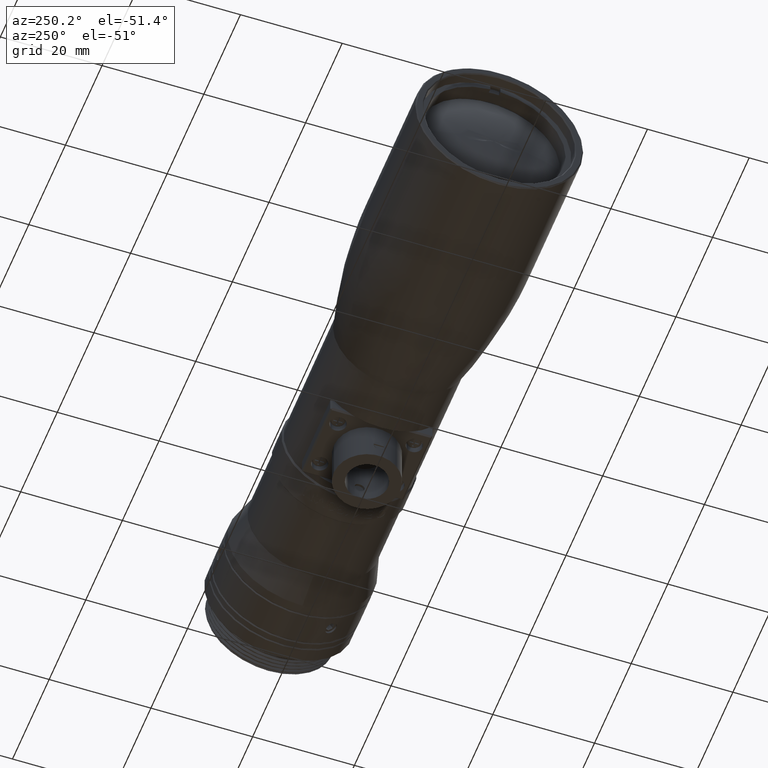
[diagram: clean part render]
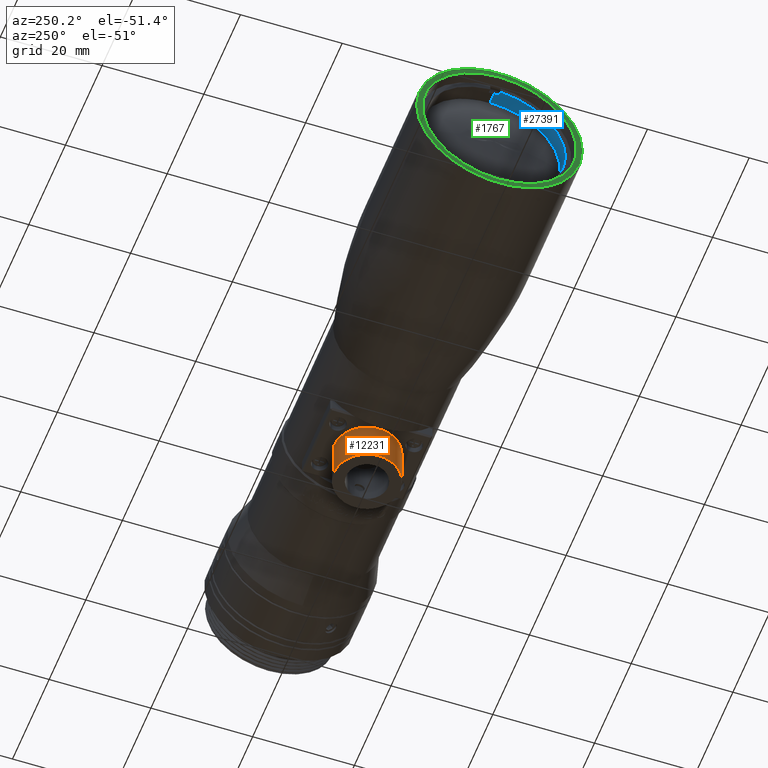
[diagram: same view with three faces highlighted in distinct colors, each labeled with its STEP entity id]
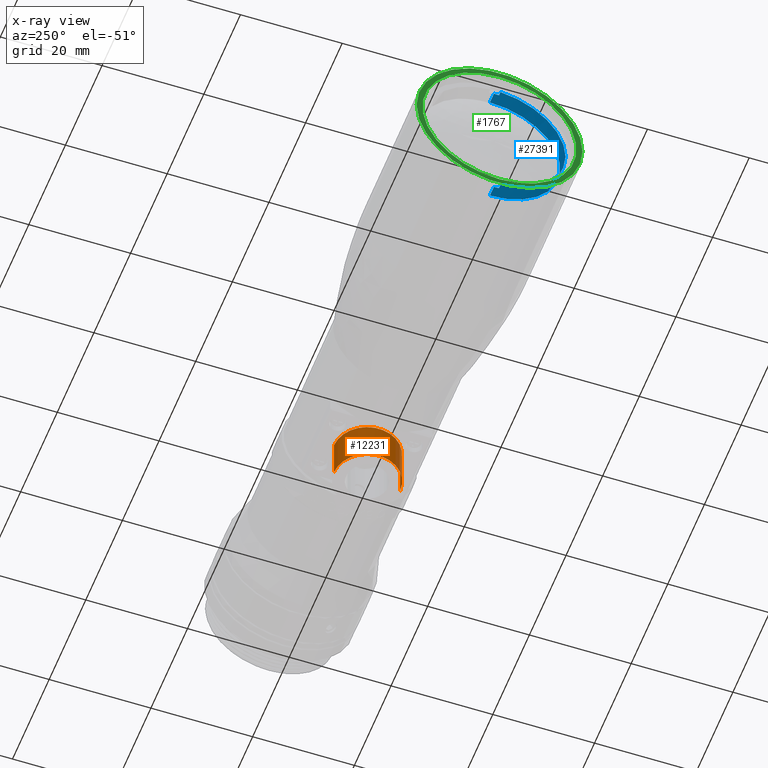
[diagram: x-ray of the same camera — body ghosted, the three highlighted faces saturated]
A machine part, auxiliary view with three faces highlighted in distinct colors.
The next image is the same camera in x-ray (body ghosted, the three faces saturated) — at least one of them is partly hidden behind the body in this view.
Their STEP definitions:

[orange] entity #12231 — the highlighted cylindrical surface (edge-blend (fillet) strip) has radius 6.5 mm, axis along (0, -0, -1).
#669 = CIRCLE ( 'NONE', #21036, 6.500000000000000000 ) ;
#706 = DIRECTION ( 'NONE',  ( 0.000000000000000000, 1.000000000000000000, -2.668805347656626185E-16 ) ) ;
#868 = CARTESIAN_POINT ( 'NONE',  ( 11.05000000000000071, 1.224646799147351975E-16, -15.50000000000000000 ) ) ;
#873 = FACE_BOUND ( 'NONE', #28951, .T. ) ;
#1161 = DIRECTION ( 'NONE',  ( 0.000000000000000000, -1.334402673828311860E-16, -1.000000000000000000 ) ) ;
#1251 = AXIS2_PLACEMENT_3D ( 'NONE', #30271, #12619, #19820 ) ;
#1289 = CARTESIAN_POINT ( 'NONE',  ( 11.05000000000000071, 0.000000000000000000, -17.50000000000000000 ) ) ;
#1853 = CARTESIAN_POINT ( 'NONE',  ( 11.09866780377592654, -0.7993551541545715899, -15.88505845786180082 ) ) ;
#1891 = ORIENTED_EDGE ( 'NONE', *, *, #2799, .F. ) ;
#2361 = AXIS2_PLACEMENT_3D ( 'NONE', #17699, #20473, #706 ) ;
#2799 = EDGE_CURVE ( 'NONE', #3019, #28990, #14213, .T. ) ;
#2960 = CARTESIAN_POINT ( 'NONE',  ( 17.55000000000000071, -6.500000000000000000, -19.50000000000000000 ) ) ;
#3004 = FACE_OUTER_BOUND ( 'NONE', #12775, .T. ) ;
#3019 = VERTEX_POINT ( 'NONE', #28397 ) ;
#3373 = EDGE_CURVE ( 'NONE', #31111, #28990, #669, .T. ) ;
#3907 = CARTESIAN_POINT ( 'NONE',  ( 11.10838409777112368, 0.8708087376432909199, -17.00793262438586240 ) ) ;
#4646 = EDGE_CURVE ( 'NONE', #25045, #31111, #29301, .T. ) ;
#4790 = CARTESIAN_POINT ( 'NONE',  ( 11.05000000000000071, 0.000000000000000000, -17.50000000000000000 ) ) ;
#4956 = CARTESIAN_POINT ( 'NONE',  ( 11.05000000000000426, -0.1326326919322166897, -15.50000000000000888 ) ) ;
#6517 = CARTESIAN_POINT ( 'NONE',  ( 11.12737144412097123, 0.9999212166788603584, -16.63238399089368613 ) ) ;
#6999 = CARTESIAN_POINT ( 'NONE',  ( 11.07843410189048150, 0.6144027282681157054, -17.29973209472071716 ) ) ;
#9225 = CARTESIAN_POINT ( 'NONE',  ( 17.55000000000000071, 6.500000000000000000, -11.50000000000000000 ) ) ;
#9288 = CARTESIAN_POINT ( 'NONE',  ( 11.06868777811942373, 0.5079858334530766850, -15.62917009673750535 ) ) ;
#9460 = VECTOR ( 'NONE', #23326, 1000.000000000000000 ) ;
#9971 = CARTESIAN_POINT ( 'NONE',  ( 11.09870907900310577, -0.7996687849595021103, -17.11445944101942374 ) ) ;
#10023 = CARTESIAN_POINT ( 'NONE',  ( 11.05408021772133864, -0.2608020807382656625, -15.52559845760708335 ) ) ;
#10696 = DIRECTION ( 'NONE',  ( 0.000000000000000000, 1.000000000000000000, 0.000000000000000000 ) ) ;
#11251 = CARTESIAN_POINT ( 'NONE',  ( 11.12319609964876399, 0.9741226390111151767, -16.75974522325493865 ) ) ;
#11408 = CARTESIAN_POINT ( 'NONE',  ( 11.09870684785643924, 0.7996506981966021721, -15.88551791711396000 ) ) ;
#11812 = CARTESIAN_POINT ( 'NONE',  ( 11.10838180474754644, -0.8707919422096519479, -15.99203951557584524 ) ) ;
#12231 = ADVANCED_FACE ( 'NONE', ( #873, #3004 ), #12801, .T. ) ;
#12619 = DIRECTION ( 'NONE',  ( 0.000000000000000000, 2.668805347656624706E-16, 1.000000000000000000 ) ) ;
#12775 = EDGE_LOOP ( 'NONE', ( #1891, #26715, #22571, #13136 ) ) ;
#12801 = CYLINDRICAL_SURFACE ( 'NONE', #2361, 6.500000000000000000 ) ;
#12892 = CARTESIAN_POINT ( 'NONE',  ( 11.07849639755453097, -0.6150331995192030998, -17.29926553050512794 ) ) ;
#13136 = ORIENTED_EDGE ( 'NONE', *, *, #3373, .T. ) ;
#13459 = CARTESIAN_POINT ( 'NONE',  ( 17.55000000000000071, -1.067522139062650080E-15, -19.50000000000000000 ) ) ;
#14010 = CARTESIAN_POINT ( 'NONE',  ( 17.55000000000000071, 6.500000000000000000, -11.50000000000000000 ) ) ;
#14051 = CARTESIAN_POINT ( 'NONE',  ( 17.55000000000000071, 6.500000000000000000, -19.50000000000000000 ) ) ;
#14177 = CARTESIAN_POINT ( 'NONE',  ( 11.05000000000000071, 1.224646799147351975E-16, -15.50000000000000000 ) ) ;
#14213 = LINE ( 'NONE', #31720, #25136 ) ;
#14349 = CARTESIAN_POINT ( 'NONE',  ( 11.12739597718836748, 1.000078783157178242, -16.36759039341618660 ) ) ;
#14670 = ORIENTED_EDGE ( 'NONE', *, *, #21455, .T. ) ;
#15332 = CIRCLE ( 'NONE', #1251, 6.500000000000000000 ) ;
#15341 = CARTESIAN_POINT ( 'NONE',  ( 11.05000000000000071, 0.000000000000000000, -17.50000000000000000 ) ) ;
#15505 = CARTESIAN_POINT ( 'NONE',  ( 11.05400290092442361, -0.2597695903759118519, -17.47416440277192251 ) ) ;
#16779 = CARTESIAN_POINT ( 'NONE',  ( 11.09867002276459580, 0.7993731362143320363, -17.11491903011776827 ) ) ;
#17105 = EDGE_CURVE ( 'NONE', #27974, #24497, #21933, .T. ) ;
#17349 = CARTESIAN_POINT ( 'NONE',  ( 11.05000000000000071, 1.224646799147351975E-16, -15.50000000000000000 ) ) ;
#17535 = EDGE_CURVE ( 'NONE', #25045, #3019, #15332, .T. ) ;
#17699 = CARTESIAN_POINT ( 'NONE',  ( 17.55000000000000071, 0.000000000000000000, -11.50000000000000000 ) ) ;
#17962 = CARTESIAN_POINT ( 'NONE',  ( 11.10870901338297756, -0.8731457348113568218, -17.00508371189478396 ) ) ;
#19334 = CARTESIAN_POINT ( 'NONE',  ( 11.12739700708326929, -1.000085397776964369, -16.63236412092456362 ) ) ;
#19820 = DIRECTION ( 'NONE',  ( 0.000000000000000000, 1.000000000000000000, -2.668805347656626185E-16 ) ) ;
#19981 = CARTESIAN_POINT ( 'NONE',  ( 11.06851039843444084, -0.5052564575680560388, -15.62692912963865943 ) ) ;
#20473 = DIRECTION ( 'NONE',  ( 0.000000000000000000, -2.668805347656624706E-16, -1.000000000000000000 ) ) ;
#21036 = AXIS2_PLACEMENT_3D ( 'NONE', #13459, #23428, #10696 ) ;
#21455 = EDGE_CURVE ( 'NONE', #24497, #27974, #25779, .T. ) ;
#21531 = CARTESIAN_POINT ( 'NONE',  ( 11.07849482558826004, 0.6150165457797406310, -15.70072234770461961 ) ) ;
#21774 = CARTESIAN_POINT ( 'NONE',  ( 11.12319437176983072, -0.9741113883810962326, -16.24021443291823275 ) ) ;
#21933 = B_SPLINE_CURVE_WITH_KNOTS ( 'NONE', 3,
 ( #1289, #26578, #31683, #29363, #6999, #16779, #3907, #11251, #6517, #14349, #26731, #28719, #11408, #21531, #9288, #24140, #24304, #14177 ),
 .UNSPECIFIED., .F., .F.,
 ( 4, 2, 2, 2, 2, 2, 2, 2, 4 ),
 ( 0.000000000000000000, 0.1250000000000000833, 0.2500000000000001665, 0.3750000000000002220, 0.5000000000000003331, 0.6250000000000004441, 0.7500000000000004441, 0.8750000000000005551, 1.000000000000000000 ),
 .UNSPECIFIED. ) ;
#21973 = ORIENTED_EDGE ( 'NONE', *, *, #17105, .T. ) ;
#22571 = ORIENTED_EDGE ( 'NONE', *, *, #4646, .T. ) ;
#22855 = CARTESIAN_POINT ( 'NONE',  ( 11.06868885493605248, -0.5080003859765025442, -17.37082201385960900 ) ) ;
#23014 = CARTESIAN_POINT ( 'NONE',  ( 11.12323823739948914, -0.9743440333213657656, -16.76093296980677749 ) ) ;
#23181 = CARTESIAN_POINT ( 'NONE',  ( 11.05000000000000249, -0.1317399134059683008, -17.50000000000000711 ) ) ;
#23326 = DIRECTION ( 'NONE',  ( 0.000000000000000000, -1.334402673828311860E-16, -1.000000000000000000 ) ) ;
#23428 = DIRECTION ( 'NONE',  ( 0.000000000000000000, 0.000000000000000000, 1.000000000000000000 ) ) ;
#24140 = CARTESIAN_POINT ( 'NONE',  ( 11.05400264706913838, 0.2597616507547116371, -15.52583401934749396 ) ) ;
#24304 = CARTESIAN_POINT ( 'NONE',  ( 11.04999999999999716, 0.1317357278962817124, -15.49999999999999467 ) ) ;
#24497 = VERTEX_POINT ( 'NONE', #868 ) ;
#25045 = VERTEX_POINT ( 'NONE', #14010 ) ;
#25136 = VECTOR ( 'NONE', #1161, 1000.000000000000000 ) ;
#25779 = B_SPLINE_CURVE_WITH_KNOTS ( 'NONE', 3,
 ( #17349, #4956, #10023, #19981, #29951, #1853, #11812, #21774, #31759, #19334, #23014, #17962, #9971, #12892, #22855, #15505, #23181, #15341 ),
 .UNSPECIFIED., .F., .F.,
 ( 4, 2, 2, 2, 2, 2, 2, 2, 4 ),
 ( 0.000000000000000000, 0.1250000000000005551, 0.2500000000000004996, 0.3750000000000004441, 0.5000000000000003331, 0.6250000000000003331, 0.7500000000000002220, 0.8750000000000001110, 1.000000000000000000 ),
 .UNSPECIFIED. ) ;
#26578 = CARTESIAN_POINT ( 'NONE',  ( 11.05000000000000249, 0.1326369717828552175, -17.49999999999999645 ) ) ;
#26715 = ORIENTED_EDGE ( 'NONE', *, *, #17535, .F. ) ;
#26731 = CARTESIAN_POINT ( 'NONE',  ( 11.12323649729298758, 0.9743327073492662471, -16.23902690962437134 ) ) ;
#27974 = VERTEX_POINT ( 'NONE', #4790 ) ;
#28397 = CARTESIAN_POINT ( 'NONE',  ( 17.55000000000000071, -6.500000000000000000, -11.50000000000000000 ) ) ;
#28719 = CARTESIAN_POINT ( 'NONE',  ( 11.10870667427186831, 0.8731286481771534103, -15.99488788634361214 ) ) ;
#28951 = EDGE_LOOP ( 'NONE', ( #21973, #14670 ) ) ;
#28990 = VERTEX_POINT ( 'NONE', #2960 ) ;
#29301 = LINE ( 'NONE', #9225, #9460 ) ;
#29363 = CARTESIAN_POINT ( 'NONE',  ( 11.06851148280349939, 0.5052711700581135057, -17.37306299899684348 ) ) ;
#29951 = CARTESIAN_POINT ( 'NONE',  ( 11.07843251789128836, -0.6143859479381980071, -15.70025567727158844 ) ) ;
#30271 = CARTESIAN_POINT ( 'NONE',  ( 17.55000000000000071, 0.000000000000000000, -11.50000000000000000 ) ) ;
#31111 = VERTEX_POINT ( 'NONE', #14051 ) ;
#31683 = CARTESIAN_POINT ( 'NONE',  ( 11.05408048165451440, 0.2608102088111958206, -17.47439994270175134 ) ) ;
#31720 = CARTESIAN_POINT ( 'NONE',  ( 17.55000000000000071, -6.500000000000000000, -11.50000000000000000 ) ) ;
#31759 = CARTESIAN_POINT ( 'NONE',  ( 11.12737041403697980, -0.9999146008445655154, -16.36756162801971470 ) ) ;

[blue] entity #27391 — the highlighted cylindrical surface (partial cylindrical patch) has radius 13.8 mm, axis along (1, 0, 0).
#209 = AXIS2_PLACEMENT_3D ( 'NONE', #30876, #23504, #23351 ) ;
#481 = CYLINDRICAL_SURFACE ( 'NONE', #13993, 13.79999999999999893 ) ;
#1595 = CARTESIAN_POINT ( 'NONE',  ( -51.74000000000000199, 0.000000000000000000, -13.79999999999999893 ) ) ;
#1791 = CIRCLE ( 'NONE', #10151, 13.79999999999999893 ) ;
#2165 = CARTESIAN_POINT ( 'NONE',  ( -51.74000000000000199, 1.690012582823350093E-15, 13.79999999999999893 ) ) ;
#2823 = DIRECTION ( 'NONE',  ( -1.000000000000000000, 0.000000000000000000, 0.000000000000000000 ) ) ;
#3134 = LINE ( 'NONE', #5733, #21381 ) ;
#3375 = VECTOR ( 'NONE', #32101, 1000.000000000000000 ) ;
#3443 = FACE_OUTER_BOUND ( 'NONE', #21419, .T. ) ;
#3517 = CARTESIAN_POINT ( 'NONE',  ( -51.03999999999999915, -0.9999999999998698819, 13.76372042726822009 ) ) ;
#3920 = VECTOR ( 'NONE', #30646, 1000.000000000000000 ) ;
#5685 = VERTEX_POINT ( 'NONE', #1595 ) ;
#5733 = CARTESIAN_POINT ( 'NONE',  ( -51.03999999999999915, -0.9999999999998698819, -13.76372042726822009 ) ) ;
#6265 = LINE ( 'NONE', #31604, #11205 ) ;
#6597 = DIRECTION ( 'NONE',  ( 1.000000000000000000, 0.000000000000000000, 0.000000000000000000 ) ) ;
#6757 = ORIENTED_EDGE ( 'NONE', *, *, #31023, .F. ) ;
#6918 = CARTESIAN_POINT ( 'NONE',  ( -51.74000000000000199, -0.9999999999999349409, 13.76372042726820055 ) ) ;
#7715 = DIRECTION ( 'NONE',  ( 0.000000000000000000, 0.000000000000000000, -1.000000000000000000 ) ) ;
#7775 = DIRECTION ( 'NONE',  ( 0.000000000000000000, 0.000000000000000000, -1.000000000000000000 ) ) ;
#8196 = LINE ( 'NONE', #25163, #3375 ) ;
#9181 = ORIENTED_EDGE ( 'NONE', *, *, #21830, .T. ) ;
#9649 = ORIENTED_EDGE ( 'NONE', *, *, #13756, .F. ) ;
#10151 = AXIS2_PLACEMENT_3D ( 'NONE', #28122, #2823, #25511 ) ;
#10447 = DIRECTION ( 'NONE',  ( 1.000000000000000000, 0.000000000000000000, 0.000000000000000000 ) ) ;
#11043 = CARTESIAN_POINT ( 'NONE',  ( -52.54000000000000625, -0.9999999999999349409, -13.76372042726820055 ) ) ;
#11079 = CARTESIAN_POINT ( 'NONE',  ( -52.54000000000000625, 0.000000000000000000, 0.000000000000000000 ) ) ;
#11205 = VECTOR ( 'NONE', #6597, 1000.000000000000000 ) ;
#11379 = VERTEX_POINT ( 'NONE', #18503 ) ;
#13035 = CIRCLE ( 'NONE', #28161, 13.79999999999999893 ) ;
#13156 = VERTEX_POINT ( 'NONE', #27125 ) ;
#13565 = DIRECTION ( 'NONE',  ( 1.000000000000000000, 0.000000000000000000, 0.000000000000000000 ) ) ;
#13756 = EDGE_CURVE ( 'NONE', #5685, #16044, #8196, .T. ) ;
#13993 = AXIS2_PLACEMENT_3D ( 'NONE', #11079, #10447, #20417 ) ;
#14277 = CIRCLE ( 'NONE', #209, 13.79999999999999893 ) ;
#14412 = CARTESIAN_POINT ( 'NONE',  ( -49.53999999999999915, 0.000000000000000000, -13.79999999999999893 ) ) ;
#16044 = VERTEX_POINT ( 'NONE', #14412 ) ;
#16507 = ORIENTED_EDGE ( 'NONE', *, *, #16930, .F. ) ;
#16930 = EDGE_CURVE ( 'NONE', #22039, #19407, #14277, .T. ) ;
#17334 = VERTEX_POINT ( 'NONE', #11043 ) ;
#17890 = CARTESIAN_POINT ( 'NONE',  ( -51.74000000000000199, 0.000000000000000000, 0.000000000000000000 ) ) ;
#18405 = EDGE_CURVE ( 'NONE', #16044, #13156, #1791, .T. ) ;
#18503 = CARTESIAN_POINT ( 'NONE',  ( -51.74000000000000199, -0.9999999999999349409, -13.76372042726820055 ) ) ;
#18536 = CARTESIAN_POINT ( 'NONE',  ( -52.54000000000000625, -0.9999999999999349409, 13.76372042726820055 ) ) ;
#19407 = VERTEX_POINT ( 'NONE', #6918 ) ;
#20417 = DIRECTION ( 'NONE',  ( 0.000000000000000000, 0.000000000000000000, -1.000000000000000000 ) ) ;
#20494 = LINE ( 'NONE', #3517, #3920 ) ;
#21381 = VECTOR ( 'NONE', #13565, 1000.000000000000000 ) ;
#21419 = EDGE_LOOP ( 'NONE', ( #16507, #9181, #27111, #9649, #25660, #6757, #21951, #29963 ) ) ;
#21755 = EDGE_CURVE ( 'NONE', #19407, #27779, #20494, .T. ) ;
#21830 = EDGE_CURVE ( 'NONE', #22039, #13156, #6265, .T. ) ;
#21951 = ORIENTED_EDGE ( 'NONE', *, *, #30853, .F. ) ;
#22039 = VERTEX_POINT ( 'NONE', #2165 ) ;
#23351 = DIRECTION ( 'NONE',  ( 0.000000000000000000, 0.000000000000000000, -1.000000000000000000 ) ) ;
#23504 = DIRECTION ( 'NONE',  ( 1.000000000000000000, 0.000000000000000000, 0.000000000000000000 ) ) ;
#25163 = CARTESIAN_POINT ( 'NONE',  ( -52.54000000000000625, 0.000000000000000000, -13.79999999999999893 ) ) ;
#25167 = CARTESIAN_POINT ( 'NONE',  ( -52.54000000000000625, 0.000000000000000000, 0.000000000000000000 ) ) ;
#25480 = CIRCLE ( 'NONE', #28094, 13.79999999999999893 ) ;
#25511 = DIRECTION ( 'NONE',  ( 0.000000000000000000, 0.000000000000000000, -1.000000000000000000 ) ) ;
#25660 = ORIENTED_EDGE ( 'NONE', *, *, #28616, .F. ) ;
#27111 = ORIENTED_EDGE ( 'NONE', *, *, #18405, .F. ) ;
#27125 = CARTESIAN_POINT ( 'NONE',  ( -49.53999999999999915, 1.690012582823350093E-15, 13.79999999999999893 ) ) ;
#27391 = ADVANCED_FACE ( 'NONE', ( #3443 ), #481, .F. ) ;
#27779 = VERTEX_POINT ( 'NONE', #18536 ) ;
#28094 = AXIS2_PLACEMENT_3D ( 'NONE', #17890, #30315, #7775 ) ;
#28122 = CARTESIAN_POINT ( 'NONE',  ( -49.53999999999999915, 0.000000000000000000, 0.000000000000000000 ) ) ;
#28161 = AXIS2_PLACEMENT_3D ( 'NONE', #25167, #30099, #7715 ) ;
#28616 = EDGE_CURVE ( 'NONE', #11379, #5685, #25480, .T. ) ;
#29963 = ORIENTED_EDGE ( 'NONE', *, *, #21755, .F. ) ;
#30099 = DIRECTION ( 'NONE',  ( 1.000000000000000000, 0.000000000000000000, 0.000000000000000000 ) ) ;
#30315 = DIRECTION ( 'NONE',  ( 1.000000000000000000, 0.000000000000000000, 0.000000000000000000 ) ) ;
#30646 = DIRECTION ( 'NONE',  ( -1.000000000000000000, 0.000000000000000000, 0.000000000000000000 ) ) ;
#30853 = EDGE_CURVE ( 'NONE', #27779, #17334, #13035, .T. ) ;
#30876 = CARTESIAN_POINT ( 'NONE',  ( -51.74000000000000199, 0.000000000000000000, 0.000000000000000000 ) ) ;
#31023 = EDGE_CURVE ( 'NONE', #17334, #11379, #3134, .T. ) ;
#31604 = CARTESIAN_POINT ( 'NONE',  ( -52.54000000000000625, 1.690012582823350093E-15, 13.79999999999999893 ) ) ;
#32101 = DIRECTION ( 'NONE',  ( 1.000000000000000000, 0.000000000000000000, 0.000000000000000000 ) ) ;

[green] entity #1767 — the highlighted planar face has unit normal (1, 0, 0).
#718 = CIRCLE ( 'NONE', #9579, 16.29999999999999716 ) ;
#1340 = CARTESIAN_POINT ( 'NONE',  ( -54.80000000000000426, 16.29999999999999716, 0.000000000000000000 ) ) ;
#1767 = ADVANCED_FACE ( 'NONE', ( #20183, #7765 ), #4992, .F. ) ;
#2146 = EDGE_CURVE ( 'NONE', #5652, #23220, #28590, .T. ) ;
#2687 = CARTESIAN_POINT ( 'NONE',  ( -54.80000000000000426, 0.000000000000000000, 0.000000000000000000 ) ) ;
#3805 = EDGE_CURVE ( 'NONE', #28385, #29097, #17391, .T. ) ;
#4992 = PLANE ( 'NONE',  #11917 ) ;
#5652 = VERTEX_POINT ( 'NONE', #14005 ) ;
#7765 = FACE_BOUND ( 'NONE', #17065, .T. ) ;
#8551 = CIRCLE ( 'NONE', #26280, 15.15000000000000036 ) ;
#9579 = AXIS2_PLACEMENT_3D ( 'NONE', #25745, #23144, #30838 ) ;
#11917 = AXIS2_PLACEMENT_3D ( 'NONE', #25220, #12170, #14781 ) ;
#12170 = DIRECTION ( 'NONE',  ( 1.000000000000000000, 0.000000000000000000, 0.000000000000000000 ) ) ;
#12307 = ORIENTED_EDGE ( 'NONE', *, *, #17295, .F. ) ;
#14005 = CARTESIAN_POINT ( 'NONE',  ( -54.80000000000000426, -16.29999999999999716, 2.008420750601660137E-15 ) ) ;
#14361 = CARTESIAN_POINT ( 'NONE',  ( -54.80000000000000426, 0.000000000000000000, 0.000000000000000000 ) ) ;
#14781 = DIRECTION ( 'NONE',  ( 0.000000000000000000, 1.000000000000000000, 0.000000000000000000 ) ) ;
#16821 = DIRECTION ( 'NONE',  ( 1.000000000000000000, 0.000000000000000000, 0.000000000000000000 ) ) ;
#16964 = DIRECTION ( 'NONE',  ( 0.000000000000000000, 0.000000000000000000, 1.000000000000000000 ) ) ;
#17065 = EDGE_LOOP ( 'NONE', ( #26881, #22164 ) ) ;
#17295 = EDGE_CURVE ( 'NONE', #23220, #5652, #718, .T. ) ;
#17391 = CIRCLE ( 'NONE', #23797, 15.15000000000000036 ) ;
#18143 = CARTESIAN_POINT ( 'NONE',  ( -54.80000000000000426, 0.000000000000000000, 15.15000000000000036 ) ) ;
#19585 = ORIENTED_EDGE ( 'NONE', *, *, #2146, .F. ) ;
#19748 = DIRECTION ( 'NONE',  ( 1.000000000000000000, 0.000000000000000000, 0.000000000000000000 ) ) ;
#20183 = FACE_OUTER_BOUND ( 'NONE', #27395, .T. ) ;
#20306 = EDGE_CURVE ( 'NONE', #29097, #28385, #8551, .T. ) ;
#21412 = DIRECTION ( 'NONE',  ( 0.000000000000000000, 0.000000000000000000, 1.000000000000000000 ) ) ;
#21739 = CARTESIAN_POINT ( 'NONE',  ( -54.80000000000000426, 0.000000000000000000, 0.000000000000000000 ) ) ;
#22164 = ORIENTED_EDGE ( 'NONE', *, *, #3805, .T. ) ;
#23144 = DIRECTION ( 'NONE',  ( 1.000000000000000000, -4.256990125096460189E-16, 0.000000000000000000 ) ) ;
#23220 = VERTEX_POINT ( 'NONE', #1340 ) ;
#23797 = AXIS2_PLACEMENT_3D ( 'NONE', #21739, #16821, #21412 ) ;
#25220 = CARTESIAN_POINT ( 'NONE',  ( -54.80000000000000426, 16.95199572333000049, -16.95199999999999818 ) ) ;
#25745 = CARTESIAN_POINT ( 'NONE',  ( -54.80000000000000426, 0.000000000000000000, 0.000000000000000000 ) ) ;
#25752 = CARTESIAN_POINT ( 'NONE',  ( -54.80000000000000426, 1.855339900708240019E-15, -15.15000000000000036 ) ) ;
#26280 = AXIS2_PLACEMENT_3D ( 'NONE', #14361, #19748, #16964 ) ;
#26881 = ORIENTED_EDGE ( 'NONE', *, *, #20306, .T. ) ;
#27395 = EDGE_LOOP ( 'NONE', ( #12307, #19585 ) ) ;
#28385 = VERTEX_POINT ( 'NONE', #25752 ) ;
#28590 = CIRCLE ( 'NONE', #31229, 16.29999999999999716 ) ;
#29097 = VERTEX_POINT ( 'NONE', #18143 ) ;
#30149 = DIRECTION ( 'NONE',  ( 4.256990125096459696E-16, 1.000000000000000000, 0.000000000000000000 ) ) ;
#30304 = DIRECTION ( 'NONE',  ( 1.000000000000000000, -4.256990125096460189E-16, 0.000000000000000000 ) ) ;
#30838 = DIRECTION ( 'NONE',  ( 4.256990125096459696E-16, 1.000000000000000000, 0.000000000000000000 ) ) ;
#31229 = AXIS2_PLACEMENT_3D ( 'NONE', #2687, #30304, #30149 ) ;